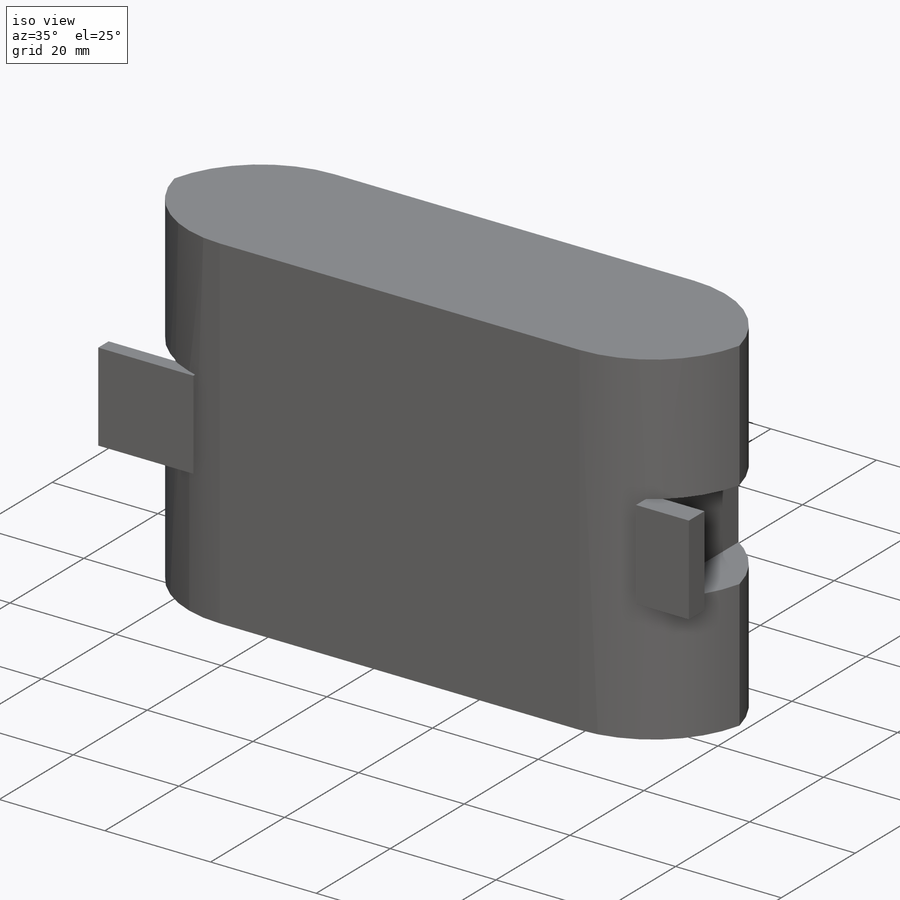
[diagram: iso view]
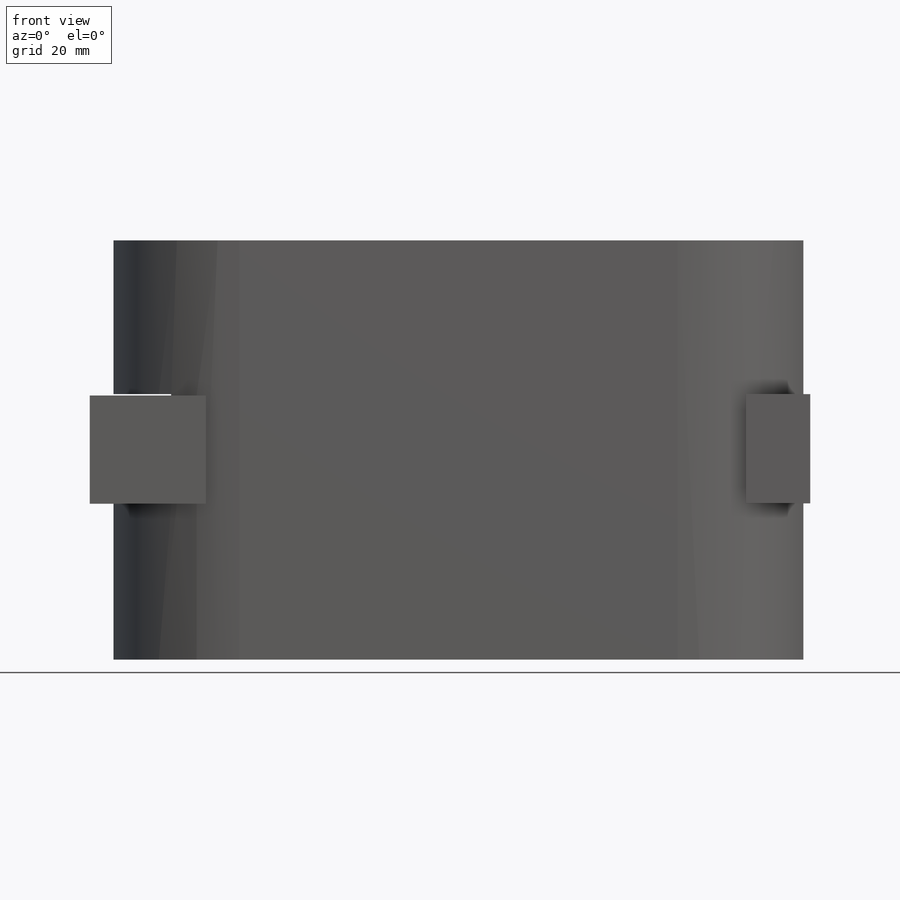
[diagram: front view]
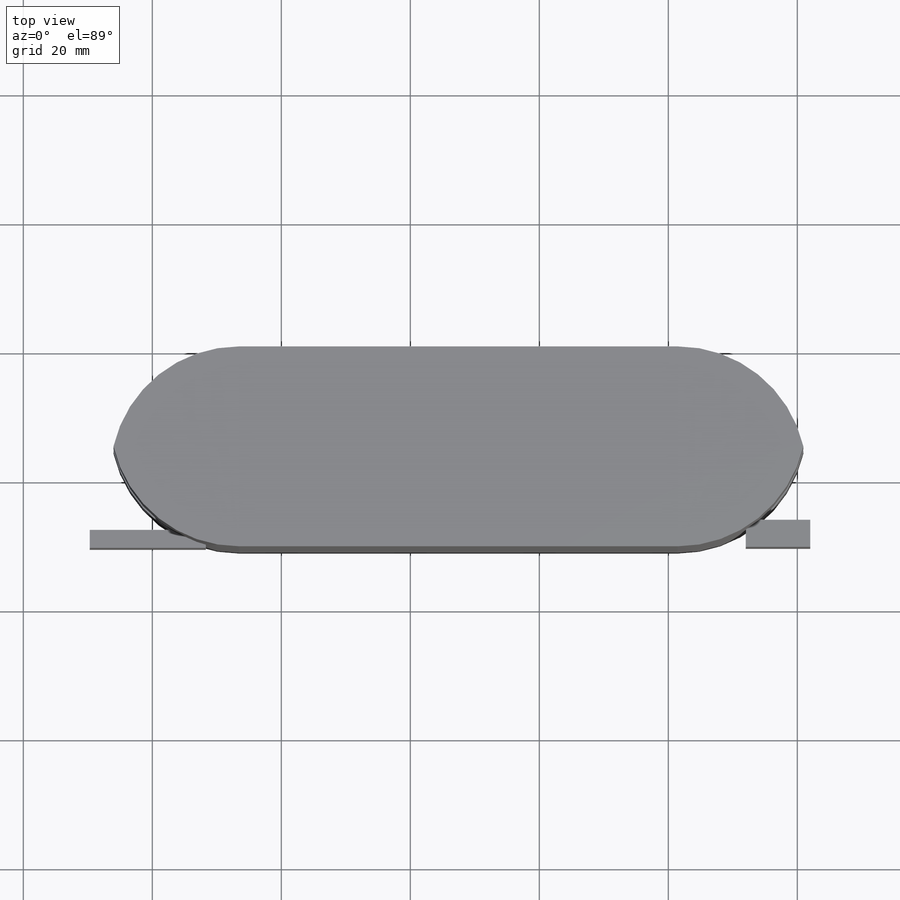
[diagram: top view]
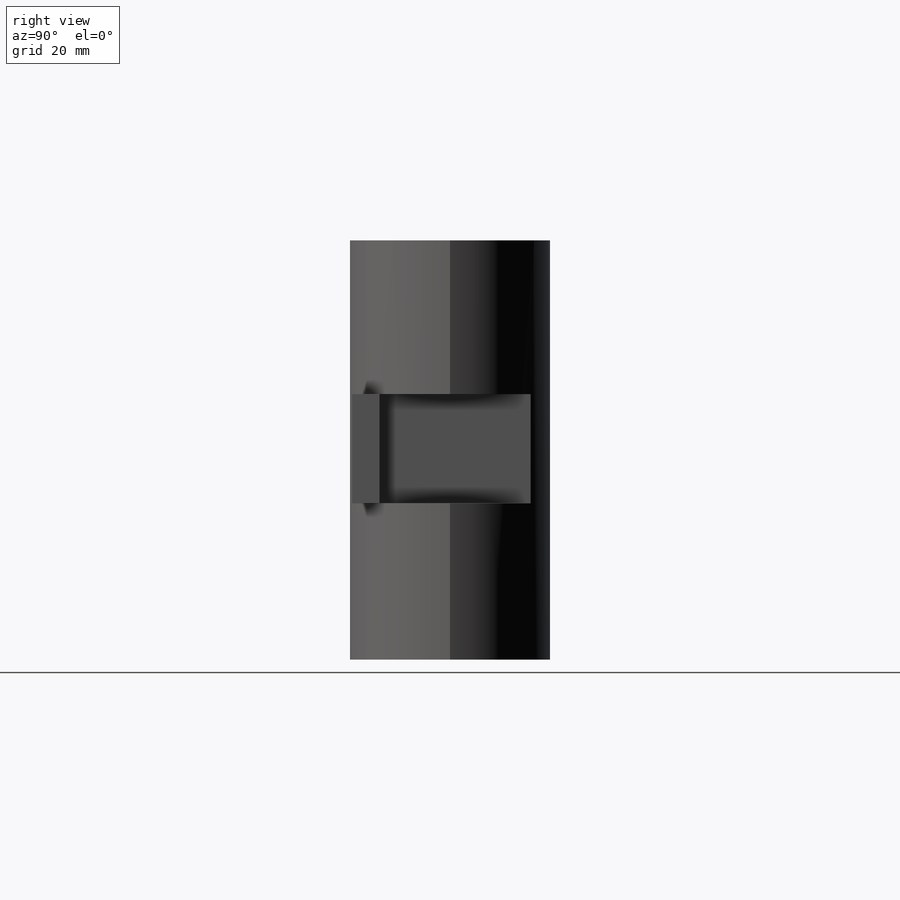
[diagram: right view]
SOLIDWORKS PART (.sldprt)
format: sldprt  version: not decoded by parser v0  size: 178,688 bytes
history: native  units: mm
features: sketch x4, extrude x3, material x1, fillet x1, cut_extrude x1 (+13 scaffold rows collapsed)
feature tree (23):
  scaffold x13  (default folders/planes/origin — collapsed)
  material  "Material <not specified>"
  sketch  "Sketch1"  dims[D1=108.0mm D2=65.0mm]
  extrude  "Boss-Extrude1"  Depth=31mm
  fillet  "Fillet1"  Radius=20mm
  sketch  "Sketch2"
  cut_extrude  "Cut-Extrude1"  Depth=28mm
  sketch  "Sketch3"
  extrude  "Boss-Extrude2"  Depth=18mm
  sketch  "Sketch4"
  extrude  "Boss-Extrude3"  Depth=10mm
decode coverage: 6 of 9 modeling features carry decoded parameters
note: suppression state not decoded; provenance and decode notes live in map.json
